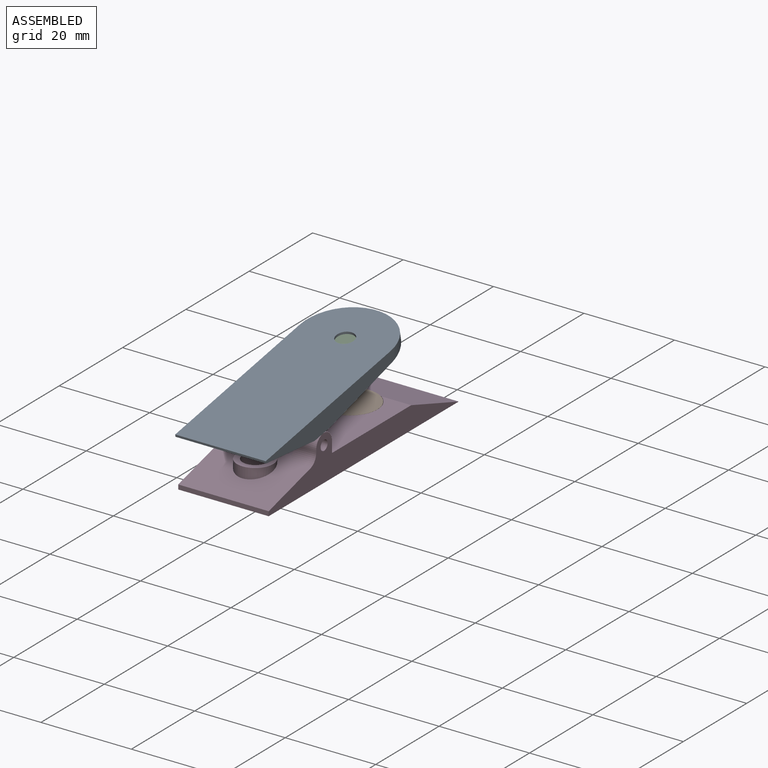
[diagram: assembled view]
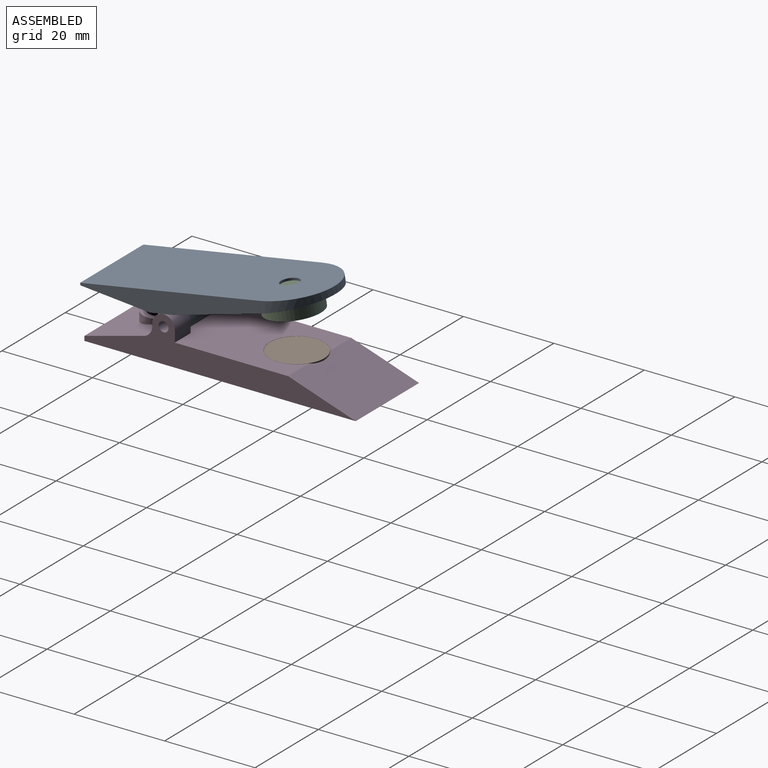
[diagram: assembled view, second angle]
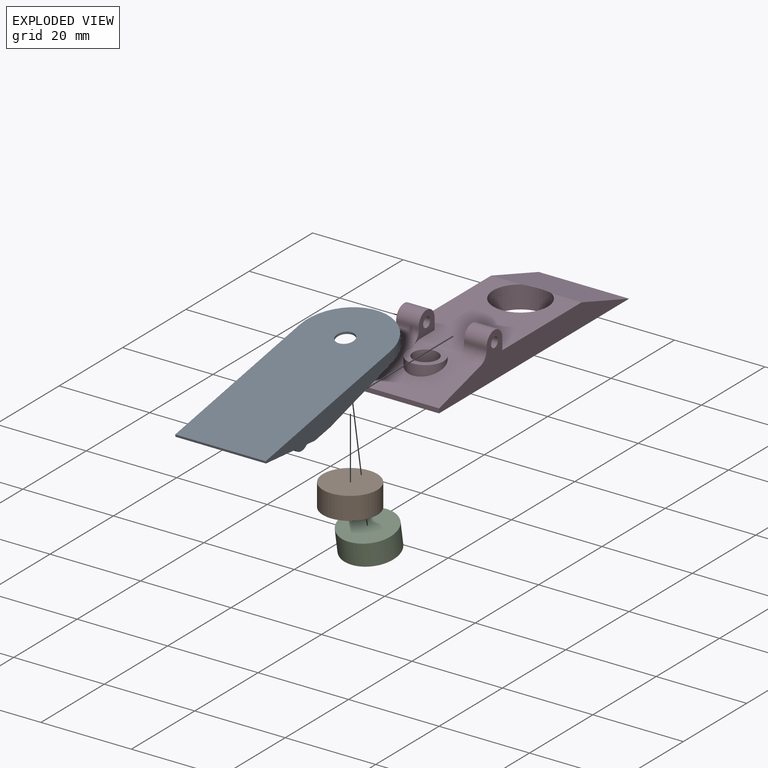
[diagram: exploded view]
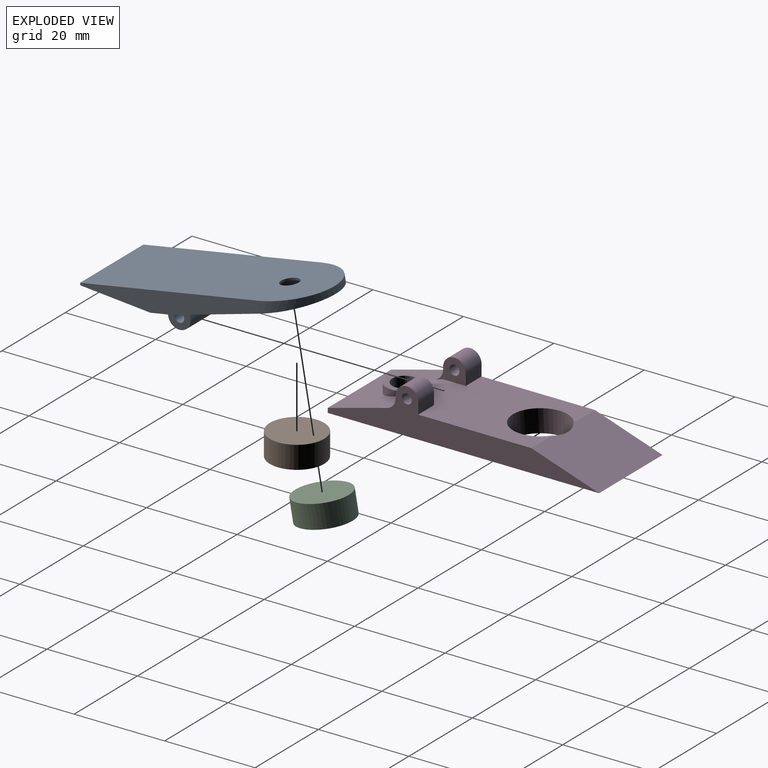
[diagram: exploded view, second angle]
ASSEMBLY  parts=4 mates=2
PART A: 25 faces, bbox 20x50x9.5 mm
  f0: plane 5x5mm, normal (0,0,1), area 25mm2, adj f5,f9,f13,f19
  f1: plane 5x5mm, normal (0,0,1), area 25mm2, adj f2,f11,f13,f19
  f2: plane 40x4.5mm, normal (-1,0,0), area 130mm2, adj f1,f3,f6,f13,f19,f20
  f3: plane 20x0.5mm, normal (0,-1,0), area 10mm2, adj f2,f5,f6,f13
  f4: cylinder r=6.05mm len=12.1mm, axis (0,0,-1), area 76mm2, adj f8,f19
  f5: plane 40x4.5mm, normal (1,0,0), area 130mm2, adj f0,f3,f6,f13,f19,f20
  f6: plane 50x20mm, normal (0,0,-1), area 944.5mm2, adj f2,f3,f5,f7,f20
  f7: cylinder r=2mm len=4mm, axis (0,0,-1), area 6.3mm2, adj f6,f8
  f8: plane 12.1x12.1mm, normal (0,0,1), area 102.4mm2, adj f4,f7
  f9: plane 6.86x5.5mm, normal (1,0,0), area 19.2mm2, adj f0,f10,f12,f13,f14,f17,f18
  f10: plane 10x2.5mm, normal (0,1,0), area 25mm2, adj f9,f11,f17,f19
  f11: plane 6.86x5.5mm, normal (-1,0,0), area 19.2mm2, adj f1,f10,f12,f13,f16,f17,f18
  f12: plane 10x0.77mm, normal (0,-1,0), area 6.3mm2, adj f9,f11,f14,f15,f16,f17
  f13: plane 20x15mm, normal (0,-0.26,0.97), area 242.2mm2, adj f0,f1,f2,f3,f5,f9,f11,f14
  f14: cylinder r=2.5mm len=2.53mm, axis (1,0,0), area 8.3mm2, adj f9,f12,f13,f15
  f15: bspline ~5.54x2.46mm, area 13.1mm2, adj f12,f14,f16,f22
  f16: cylinder r=2.5mm len=2.53mm, axis (1,0,0), area 8.3mm2, adj f11,f12,f13,f15
  f17: cylinder r=2.5mm len=10mm, axis (-1,0,0), area 78.5mm2, adj f9,f10,f11,f12
  f18: cylinder r=1.1mm len=10mm, axis (-1,0,0), area 69.1mm2, adj f9,f11
  f19: plane 30x20mm, normal (0,0.1,1), area 444.3mm2, adj f0,f1,f2,f4,f5,f10,f20
  f20: cylinder r=10mm len=20mm, axis (0,0,-1), area 58.5mm2, adj f2,f5,f6,f19
  f21: plane 8x8mm, normal (0,0,1), area 26.5mm2, adj f22,f23
  f22: cylinder r=4mm len=8mm, axis (0,0,-1), area 46.1mm2, adj f13,f15,f21
  f23: cylinder r=2.75mm len=5.5mm, axis (0,0,-1), area 77.8mm2, adj f21,f24
  f24: plane 5.5x5.5mm, normal (0,0,1), area 23.8mm2, adj f23
PART B: 3 faces, bbox 12x12x5 mm
  f0: cylinder r=6mm len=12mm, axis (0,0,-1), area 188.5mm2, adj f1,f2
  f1: plane 12x12mm, normal (0,0,1), area 113.1mm2, adj f0
  f2: plane 12x12mm, normal (0,0,-1), area 113.1mm2, adj f0
PART C: same geometry as B
PART D: 24 faces, bbox 20x60x10 mm
  f0: plane 30x20mm, normal (0,0,1), area 439.9mm2, adj f1,f3,f4,f8,f9,f10,f11,f13
  f1: plane 60x10mm, normal (-1,0,0), area 251.7mm2, adj f0,f2,f5,f7,f9,f13,f16,f17
  f2: plane 20x1mm, normal (0,-1,0), area 20mm2, adj f1,f4,f5,f13
  f3: cylinder r=6.05mm len=12.1mm, axis (0,0,-1), area 188.4mm2, adj f0,f5,f22
  f4: plane 60x10mm, normal (1,0,0), area 251.7mm2, adj f0,f2,f5,f10,f12,f13,f14,f15
  f5: plane 60x20mm, normal (0,0,-1), area 1085mm2, adj f1,f2,f3,f4,f22
  f6: cylinder r=2.75mm len=5.5mm, axis (0,0,-1), area 51.8mm2, adj f21,f23
  f7: plane 5x0.58mm, normal (0,-1,0), area 2.9mm2, adj f1,f8,f16,f17
  f8: plane 6.86x5.5mm, normal (1,0,0), area 19.2mm2, adj f0,f7,f9,f13,f16,f17,f19
  f9: plane 5x2.5mm, normal (0,1,0), area 12.5mm2, adj f0,f1,f8,f17
  f10: plane 5x2.5mm, normal (0,1,0), area 12.5mm2, adj f0,f4,f11,f15
  f11: plane 6.86x5.5mm, normal (-1,0,0), area 19.2mm2, adj f0,f10,f12,f13,f14,f15,f18
  f12: plane 5x0.58mm, normal (0,-1,0), area 2.9mm2, adj f4,f11,f14,f15
  f13: plane 20x15mm, normal (0,-0.26,0.97), area 239.3mm2, adj f0,f1,f2,f4,f8,f11,f14,f16
  f14: cylinder r=2.5mm len=5mm, axis (1,0,0), area 16.4mm2, adj f4,f11,f12,f13
  f15: cylinder r=2.5mm len=5mm, axis (1,0,0), area 39.3mm2, adj f4,f10,f11,f12
  f16: cylinder r=2.5mm len=5mm, axis (1,0,0), area 16.4mm2, adj f1,f7,f8,f13
  f17: cylinder r=2.5mm len=5mm, axis (1,0,0), area 39.3mm2, adj f1,f7,f8,f9
  f18: cylinder r=1.1mm len=5mm, axis (-1,0,0), area 34.6mm2, adj f4,f11
  f19: cylinder r=1.1mm len=5mm, axis (-1,0,0), area 34.6mm2, adj f1,f8
  f20: cylinder r=4mm len=8mm, axis (0,0,-1), area 33.5mm2, adj f13,f21
  f21: plane 8x8mm, normal (0,0,1), area 26.5mm2, adj f6,f20
  f22: plane 20x15mm, normal (0,0.32,0.95), area 311.1mm2, adj f0,f1,f3,f4,f5
  f23: plane 5.5x5.5mm, normal (0,0,1), area 23.8mm2, adj f6
PLACE A rot(axis=(0,1,0.09),180deg) t=(18.64,-15.65,21.82)mm
PLACE B t=(8.64,25.3,10.47)mm
PLACE C rot(axis=(0,-1,-0.09),180deg) t=(8.64,23.83,28.28)mm
PLACE D t=(-1.36,-14.7,10.47)mm
MATE fastened C.f0 <-> A.f4  axis (0,-0.17,0.98) through (8.64,23.83,28.28)mm
MATE fastened B.f0 <-> D.f3  axis (0,0,-1) through (8.64,25.3,10.47)mm
